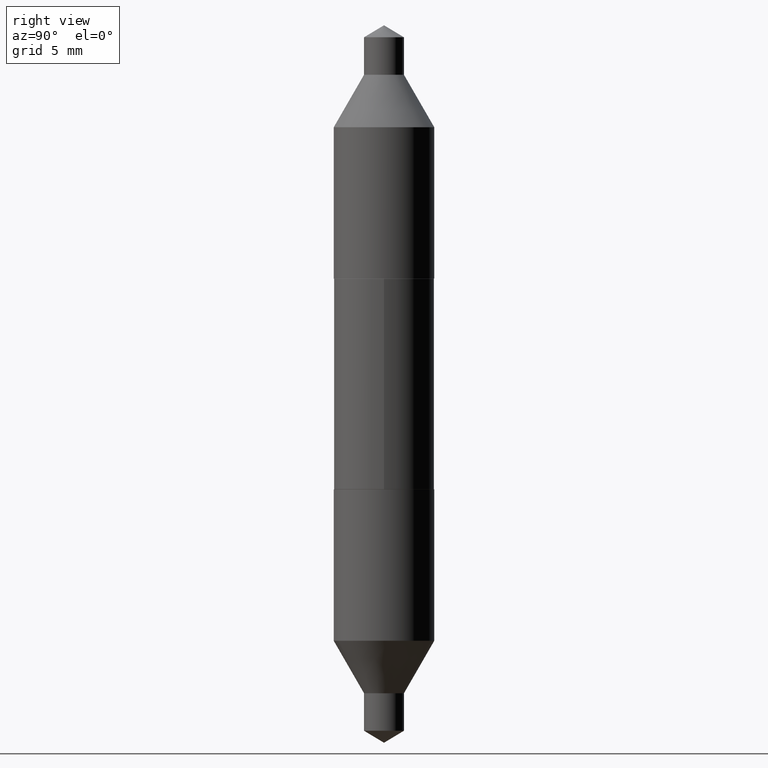
[diagram: clean part render]
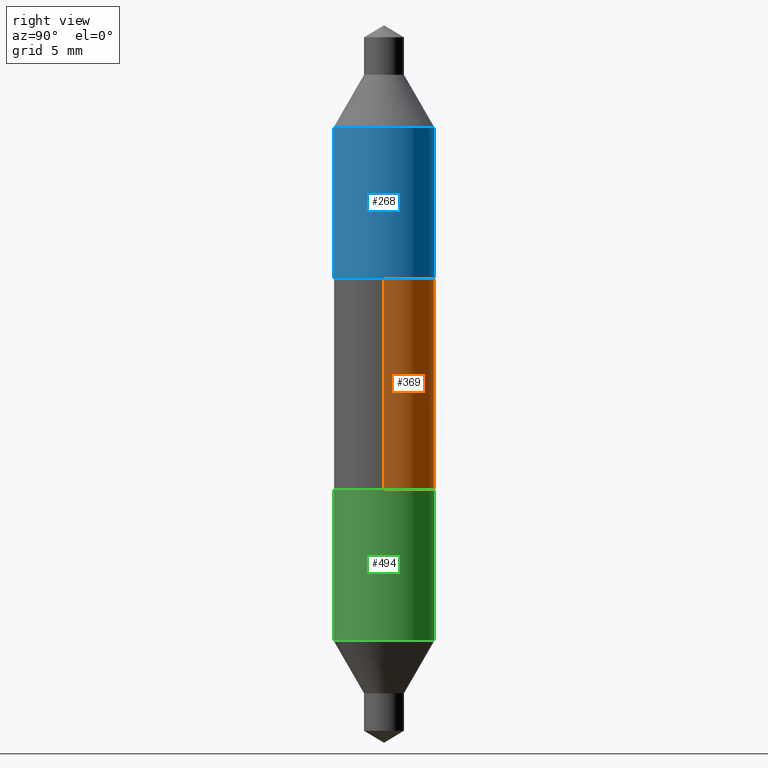
[diagram: same view with three faces highlighted in distinct colors, each labeled with its STEP entity id]
A machine part, right view with three faces highlighted in distinct colors.
Their STEP definitions:

[orange] entity #369 — the highlighted cylindrical surface (partial cylindrical patch) has radius 3.1496 mm, axis along (-0, 0, 1).
#9 = VERTEX_POINT ( 'NONE', #26 ) ;
#14 = EDGE_CURVE ( 'NONE', #177, #545, #406, .T. ) ;
#26 = CARTESIAN_POINT ( 'NONE',  ( -0.1240000000000000685, 8.810729923425244214E-16, 0.2595000000000000084 ) ) ;
#40 = EDGE_CURVE ( 'NONE', #545, #9, #407, .T. ) ;
#45 = LINE ( 'NONE', #584, #125 ) ;
#61 = CYLINDRICAL_SURFACE ( 'NONE', #282, 0.1240000000000000269 ) ;
#63 = DIRECTION ( 'NONE',  ( -2.445468806185136597E-29, 3.491481338843145583E-15, 1.000000000000000000 ) ) ;
#66 = DIRECTION ( 'NONE',  ( 1.000000000000000000, -6.982962677686266711E-15, 4.876176775795935793E-29 ) ) ;
#75 = VECTOR ( 'NONE', #129, 39.37007874015748143 ) ;
#125 = VECTOR ( 'NONE', #362, 39.37007874015748143 ) ;
#126 = CARTESIAN_POINT ( 'NONE',  ( -0.1240000000000000407, -2.496641508727166066E-17, -0.2595000000000000084 ) ) ;
#129 = DIRECTION ( 'NONE',  ( -2.445468806185136877E-29, 3.491481338843145188E-15, 1.000000000000000000 ) ) ;
#172 = DIRECTION ( 'NONE',  ( 1.000000000000000000, -6.982962677686267499E-15, 0.000000000000000000 ) ) ;
#177 = VERTEX_POINT ( 'NONE', #363 ) ;
#179 = ORIENTED_EDGE ( 'NONE', *, *, #629, .T. ) ;
#190 = CARTESIAN_POINT ( 'NONE',  ( 0.1240000000000000269, -8.658873720330972259E-16, 6.046459201986962037E-30 ) ) ;
#194 = DIRECTION ( 'NONE',  ( 1.000000000000000000, -6.982962677686267499E-15, 0.000000000000000000 ) ) ;
#223 = ORIENTED_EDGE ( 'NONE', *, *, #414, .T. ) ;
#254 = EDGE_LOOP ( 'NONE', ( #223, #179, #662, #655 ) ) ;
#282 = AXIS2_PLACEMENT_3D ( 'NONE', #556, #63, #66 ) ;
#362 = DIRECTION ( 'NONE',  ( -2.445468806185136877E-29, 3.491481338843145188E-15, 1.000000000000000000 ) ) ;
#363 = CARTESIAN_POINT ( 'NONE',  ( 0.1240000000000000407, -1.771926779462893570E-15, -0.2595000000000000084 ) ) ;
#369 = ADVANCED_FACE ( 'NONE', ( #653 ), #61, .T. ) ;
#382 = CIRCLE ( 'NONE', #597, 0.1240000000000000407 ) ;
#406 = LINE ( 'NONE', #190, #75 ) ;
#407 = CIRCLE ( 'NONE', #646, 0.1240000000000000407 ) ;
#414 = EDGE_CURVE ( 'NONE', #177, #615, #382, .T. ) ;
#441 = CARTESIAN_POINT ( 'NONE',  ( 6.345991552050428931E-30, -9.060394074297962454E-16, -0.2595000000000000084 ) ) ;
#509 = CARTESIAN_POINT ( 'NONE',  ( 0.1240000000000000407, 4.015203539669884070E-17, 0.2595000000000000084 ) ) ;
#545 = VERTEX_POINT ( 'NONE', #509 ) ;
#556 = CARTESIAN_POINT ( 'NONE',  ( 0.000000000000000000, 0.000000000000000000, 0.000000000000000000 ) ) ;
#564 = CARTESIAN_POINT ( 'NONE',  ( -6.345991552050428931E-30, 9.060394074297962454E-16, 0.2595000000000000084 ) ) ;
#572 = DIRECTION ( 'NONE',  ( -2.445468806185136597E-29, 3.491481338843145583E-15, 1.000000000000000000 ) ) ;
#584 = CARTESIAN_POINT ( 'NONE',  ( -0.1240000000000000269, 8.810729923425244214E-16, -6.099479511916084548E-30 ) ) ;
#597 = AXIS2_PLACEMENT_3D ( 'NONE', #441, #649, #172 ) ;
#615 = VERTEX_POINT ( 'NONE', #126 ) ;
#629 = EDGE_CURVE ( 'NONE', #615, #9, #45, .T. ) ;
#646 = AXIS2_PLACEMENT_3D ( 'NONE', #564, #572, #194 ) ;
#649 = DIRECTION ( 'NONE',  ( -2.445468806185136597E-29, 3.491481338843145583E-15, 1.000000000000000000 ) ) ;
#653 = FACE_OUTER_BOUND ( 'NONE', #254, .T. ) ;
#655 = ORIENTED_EDGE ( 'NONE', *, *, #14, .F. ) ;
#662 = ORIENTED_EDGE ( 'NONE', *, *, #40, .F. ) ;

[blue] entity #268 — the highlighted cylindrical surface (partial cylindrical patch) has radius 3.1496 mm, axis along (0, -0, -1).
#25 = DIRECTION ( 'NONE',  ( -2.459151466812006814E-29, 3.471886990056787975E-15, 1.000000000000000000 ) ) ;
#47 = CIRCLE ( 'NONE', #133, 0.1240000000000001379 ) ;
#95 = DIRECTION ( 'NONE',  ( 2.459151466812006814E-29, -3.471886990056787975E-15, -1.000000000000000000 ) ) ;
#103 = CARTESIAN_POINT ( 'NONE',  ( 8.507017517236641140E-16, 0.1240000000000023306, 0.6334425995938456344 ) ) ;
#106 = VERTEX_POINT ( 'NONE', #233 ) ;
#116 = DIRECTION ( 'NONE',  ( 2.459151466812006814E-29, -3.471886990056787975E-15, -1.000000000000000000 ) ) ;
#124 = CIRCLE ( 'NONE', #500, 0.1239999999999999991 ) ;
#133 = AXIS2_PLACEMENT_3D ( 'NONE', #561, #25, #386 ) ;
#200 = CARTESIAN_POINT ( 'NONE',  ( -6.358218896081354143E-30, 9.077851480992177489E-16, 0.2599999999999999534 ) ) ;
#233 = CARTESIAN_POINT ( 'NONE',  ( 8.507017517236590850E-16, 0.1240000000000009012, 0.2599999999999995648 ) ) ;
#260 = CYLINDRICAL_SURFACE ( 'NONE', #420, 0.1240000000000000685 ) ;
#268 = ADVANCED_FACE ( 'NONE', ( #535 ), #260, .T. ) ;
#281 = ORIENTED_EDGE ( 'NONE', *, *, #666, .F. ) ;
#308 = EDGE_CURVE ( 'NONE', #697, #106, #124, .T. ) ;
#352 = DIRECTION ( 'NONE',  ( -6.982962677686265922E-15, -1.000000000000000000, 3.580042733632603487E-15 ) ) ;
#366 = LINE ( 'NONE', #518, #422 ) ;
#384 = LINE ( 'NONE', #603, #685 ) ;
#385 = VERTEX_POINT ( 'NONE', #103 ) ;
#386 = DIRECTION ( 'NONE',  ( -6.982962677686265922E-15, -1.000000000000000000, 3.304654831045475864E-15 ) ) ;
#409 = DIRECTION ( 'NONE',  ( 2.459151466812006814E-29, -3.471886990056787975E-15, -1.000000000000000000 ) ) ;
#420 = AXIS2_PLACEMENT_3D ( 'NONE', #200, #409, #690 ) ;
#422 = VECTOR ( 'NONE', #95, 39.37007874015748143 ) ;
#432 = DIRECTION ( 'NONE',  ( -2.459151466812006814E-29, 3.471886990056787975E-15, 1.000000000000000000 ) ) ;
#443 = EDGE_CURVE ( 'NONE', #581, #697, #384, .T. ) ;
#450 = EDGE_LOOP ( 'NONE', ( #281, #604, #607, #592 ) ) ;
#500 = AXIS2_PLACEMENT_3D ( 'NONE', #626, #432, #352 ) ;
#518 = CARTESIAN_POINT ( 'NONE',  ( 8.507017517236639168E-16, 0.1240000000000009706, 0.2599999999999995093 ) ) ;
#535 = FACE_OUTER_BOUND ( 'NONE', #450, .T. ) ;
#544 = EDGE_CURVE ( 'NONE', #581, #385, #47, .T. ) ;
#561 = CARTESIAN_POINT ( 'NONE',  ( -1.554173806169430922E-29, 2.204335651162077937E-15, 0.6334425995938459675 ) ) ;
#577 = CARTESIAN_POINT ( 'NONE',  ( -8.658873720331032410E-16, -0.1239999999999990971, 0.2600000000000004530 ) ) ;
#581 = VERTEX_POINT ( 'NONE', #657 ) ;
#592 = ORIENTED_EDGE ( 'NONE', *, *, #308, .T. ) ;
#603 = CARTESIAN_POINT ( 'NONE',  ( -8.658873720331037340E-16, -0.1239999999999991526, 0.2600000000000003975 ) ) ;
#604 = ORIENTED_EDGE ( 'NONE', *, *, #544, .F. ) ;
#607 = ORIENTED_EDGE ( 'NONE', *, *, #443, .T. ) ;
#626 = CARTESIAN_POINT ( 'NONE',  ( -6.358218896081355544E-30, 9.077851480992177489E-16, 0.2600000000000000089 ) ) ;
#657 = CARTESIAN_POINT ( 'NONE',  ( -8.658873720331133976E-16, -0.1239999999999979313, 0.6334425995938464116 ) ) ;
#666 = EDGE_CURVE ( 'NONE', #385, #106, #366, .T. ) ;
#685 = VECTOR ( 'NONE', #116, 39.37007874015748143 ) ;
#690 = DIRECTION ( 'NONE',  ( -6.982962677686265922E-15, -1.000000000000000000, 3.580042733632601120E-15 ) ) ;
#697 = VERTEX_POINT ( 'NONE', #577 ) ;

[green] entity #494 — the highlighted cylindrical surface (partial cylindrical patch) has radius 3.1496 mm, axis along (-0, 0, 1).
#12 = DIRECTION ( 'NONE',  ( -2.431786145558266380E-29, 3.511075687629503585E-15, 1.000000000000000000 ) ) ;
#20 = DIRECTION ( 'NONE',  ( -2.431786145558266380E-29, 3.511075687629503191E-15, 1.000000000000000000 ) ) ;
#49 = EDGE_CURVE ( 'NONE', #331, #167, #85, .T. ) ;
#77 = CARTESIAN_POINT ( 'NONE',  ( 8.810729923425398042E-16, 0.1239999999999990971, -0.2600000000000004530 ) ) ;
#85 = CIRCLE ( 'NONE', #97, 0.1240000000000001379 ) ;
#97 = AXIS2_PLACEMENT_3D ( 'NONE', #402, #297, #620 ) ;
#119 = EDGE_CURVE ( 'NONE', #167, #498, #568, .T. ) ;
#134 = DIRECTION ( 'NONE',  ( -6.982962677686265922E-15, -1.000000000000000000, 3.580042733632603487E-15 ) ) ;
#167 = VERTEX_POINT ( 'NONE', #630 ) ;
#187 = CYLINDRICAL_SURFACE ( 'NONE', #547, 0.1240000000000000685 ) ;
#234 = DIRECTION ( 'NONE',  ( -2.431786145558266380E-29, 3.511075687629503191E-15, 1.000000000000000000 ) ) ;
#274 = EDGE_LOOP ( 'NONE', ( #583, #327, #375, #359 ) ) ;
#284 = CARTESIAN_POINT ( 'NONE',  ( 6.358218896081355544E-30, -9.077851480992177489E-16, -0.2600000000000000089 ) ) ;
#289 = DIRECTION ( 'NONE',  ( -6.982962677686265922E-15, -1.000000000000000000, 3.580042733632601120E-15 ) ) ;
#297 = DIRECTION ( 'NONE',  ( -2.431786145558266380E-29, 3.511075687629503191E-15, 1.000000000000000000 ) ) ;
#322 = CARTESIAN_POINT ( 'NONE',  ( -8.658873720330824348E-16, -0.1240000000000023583, -0.6334425995938456344 ) ) ;
#327 = ORIENTED_EDGE ( 'NONE', *, *, #119, .T. ) ;
#331 = VERTEX_POINT ( 'NONE', #322 ) ;
#336 = CARTESIAN_POINT ( 'NONE',  ( -8.658873720330911123E-16, -0.1240000000000009706, -0.2599999999999995093 ) ) ;
#340 = LINE ( 'NONE', #336, #569 ) ;
#344 = CARTESIAN_POINT ( 'NONE',  ( 6.358218896081354143E-30, -9.077851480992177489E-16, -0.2599999999999999534 ) ) ;
#346 = CIRCLE ( 'NONE', #631, 0.1239999999999999991 ) ;
#359 = ORIENTED_EDGE ( 'NONE', *, *, #472, .F. ) ;
#375 = ORIENTED_EDGE ( 'NONE', *, *, #521, .F. ) ;
#402 = CARTESIAN_POINT ( 'NONE',  ( 1.543954429461713444E-29, -2.218970380258330031E-15, -0.6334425995938459675 ) ) ;
#465 = DIRECTION ( 'NONE',  ( -2.431786145558266380E-29, 3.511075687629503585E-15, 1.000000000000000000 ) ) ;
#472 = EDGE_CURVE ( 'NONE', #331, #700, #340, .T. ) ;
#494 = ADVANCED_FACE ( 'NONE', ( #563 ), #187, .T. ) ;
#498 = VERTEX_POINT ( 'NONE', #77 ) ;
#505 = CARTESIAN_POINT ( 'NONE',  ( 8.810729923425308309E-16, 0.1239999999999991526, -0.2600000000000003975 ) ) ;
#516 = VECTOR ( 'NONE', #465, 39.37007874015748143 ) ;
#521 = EDGE_CURVE ( 'NONE', #700, #498, #346, .T. ) ;
#522 = CARTESIAN_POINT ( 'NONE',  ( -8.658873720330906192E-16, -0.1240000000000009012, -0.2599999999999995648 ) ) ;
#547 = AXIS2_PLACEMENT_3D ( 'NONE', #344, #20, #289 ) ;
#563 = FACE_OUTER_BOUND ( 'NONE', #274, .T. ) ;
#568 = LINE ( 'NONE', #505, #516 ) ;
#569 = VECTOR ( 'NONE', #12, 39.37007874015748143 ) ;
#583 = ORIENTED_EDGE ( 'NONE', *, *, #49, .T. ) ;
#620 = DIRECTION ( 'NONE',  ( -6.982962677686265922E-15, -1.000000000000000000, 3.304654831045475864E-15 ) ) ;
#630 = CARTESIAN_POINT ( 'NONE',  ( 8.810729923425355640E-16, 0.1239999999999979174, -0.6334425995938464116 ) ) ;
#631 = AXIS2_PLACEMENT_3D ( 'NONE', #284, #234, #134 ) ;
#700 = VERTEX_POINT ( 'NONE', #522 ) ;